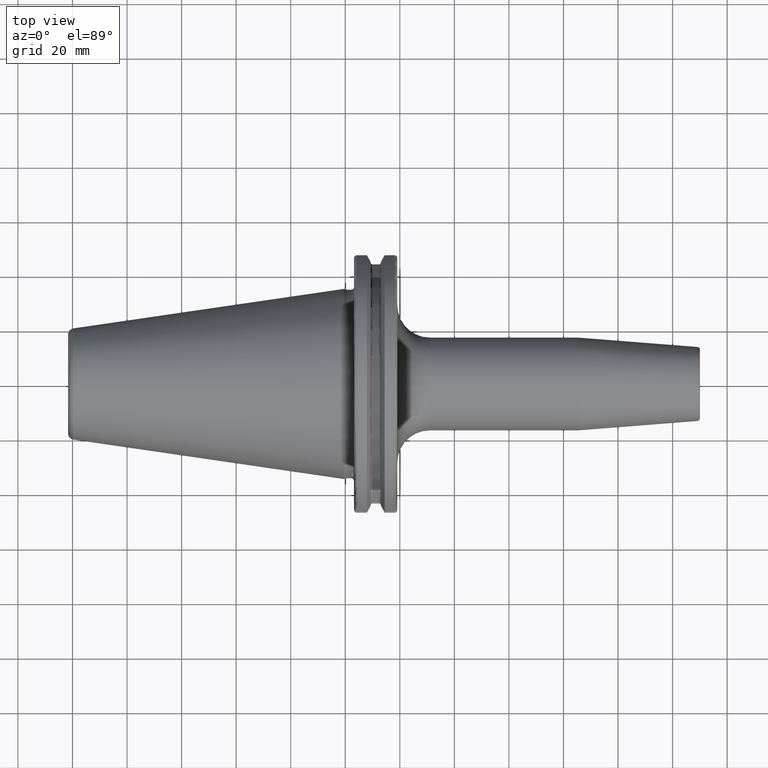
[diagram: clean part render]
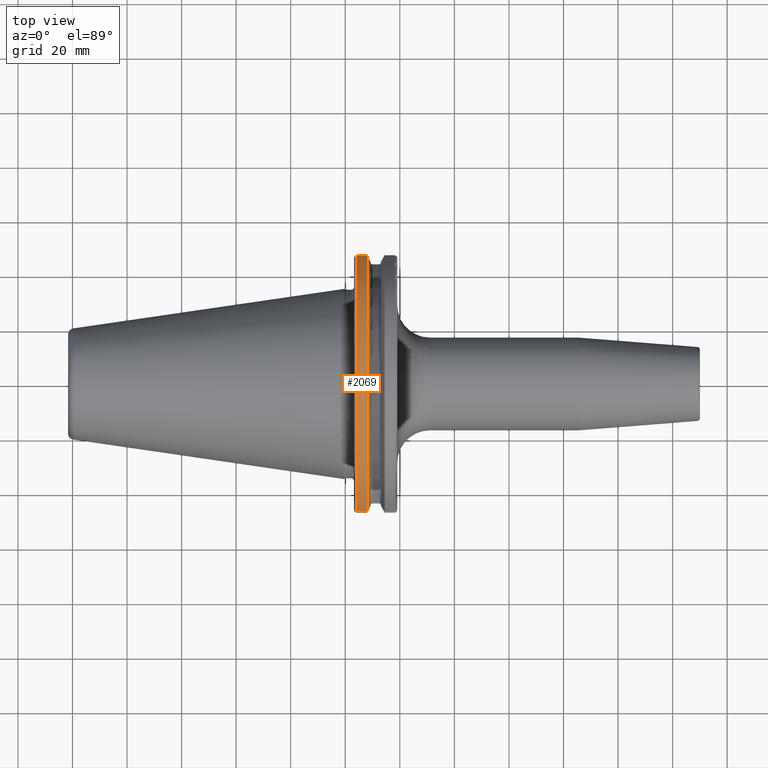
[diagram: same view with one face highlighted and labeled with its STEP entity id]
A machine part, top view. The second image highlights one B-rep face of the part: STEP entity #2069.
In plain terms, the highlighted cylindrical surface (partial cylindrical patch) has radius 48.7375 mm, axis along (1, 0, 0).
Its self-contained STEP definition (entity closure, byte-faithful):
#333=CARTESIAN_POINT('',(7.934621614173E0,4.699929686974E1,1.29E1));
#345=CARTESIAN_POINT('',(7.934621614173E0,-4.699929686974E1,1.29E1));
#476=DIRECTION('',(1.E0,0.E0,0.E0));
#477=VECTOR('',#476,3.734621614173E0);
#478=CARTESIAN_POINT('',(4.2E0,4.699929686974E1,1.29E1));
#479=LINE('',#478,#477);
#480=CARTESIAN_POINT('',(7.934621614173E0,0.E0,0.E0));
#481=DIRECTION('',(1.E0,0.E0,0.E0));
#482=DIRECTION('',(0.E0,9.643354064066E-1,2.646832521159E-1));
#483=AXIS2_PLACEMENT_3D('',#480,#481,#482);
#485=DIRECTION('',(1.E0,0.E0,0.E0));
#486=VECTOR('',#485,3.734621614173E0);
#487=CARTESIAN_POINT('',(4.2E0,-4.699929686974E1,1.29E1));
#488=LINE('',#487,#486);
#518=CARTESIAN_POINT('',(4.2E0,0.E0,0.E0));
#519=DIRECTION('',(1.E0,0.E0,0.E0));
#520=DIRECTION('',(0.E0,9.643354064066E-1,2.646832521159E-1));
#521=AXIS2_PLACEMENT_3D('',#518,#519,#520);
#1316=VERTEX_POINT('',#333);
#1317=VERTEX_POINT('',#345);
#1344=CARTESIAN_POINT('',(4.2E0,4.699929686974E1,1.29E1));
#1345=VERTEX_POINT('',#1344);
#1348=CARTESIAN_POINT('',(4.2E0,-4.699929686974E1,1.29E1));
#1349=VERTEX_POINT('',#1348);
#2057=CARTESIAN_POINT('',(-1.076325E2,0.E0,0.E0));
#2058=DIRECTION('',(1.E0,0.E0,0.E0));
#2059=DIRECTION('',(0.E0,-1.E0,0.E0));
#2060=AXIS2_PLACEMENT_3D('',#2057,#2058,#2059);
#2061=CYLINDRICAL_SURFACE('',#2060,4.87375E1);
#2062=ORIENTED_EDGE('',*,*,#1893,.T.);
#2063=ORIENTED_EDGE('',*,*,#1926,.T.);
#2064=ORIENTED_EDGE('',*,*,#1957,.F.);
#2066=ORIENTED_EDGE('',*,*,#2065,.F.);
#2067=EDGE_LOOP('',(#2062,#2063,#2064,#2066));
#2068=FACE_OUTER_BOUND('',#2067,.F.);
#2069=ADVANCED_FACE('',(#2068),#2061,.T.);
#484=CIRCLE('',#483,4.87375E1);
#522=CIRCLE('',#521,4.87375E1);
#1893=EDGE_CURVE('',#1345,#1316,#479,.T.);
#1926=EDGE_CURVE('',#1316,#1317,#484,.T.);
#1957=EDGE_CURVE('',#1349,#1317,#488,.T.);
#2065=EDGE_CURVE('',#1345,#1349,#522,.T.);